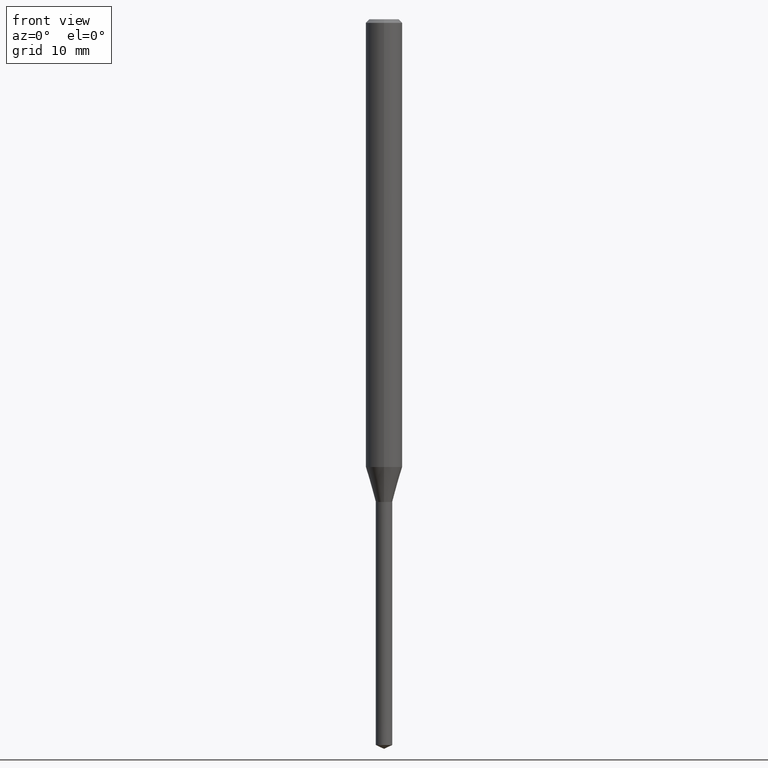
[diagram: clean part render]
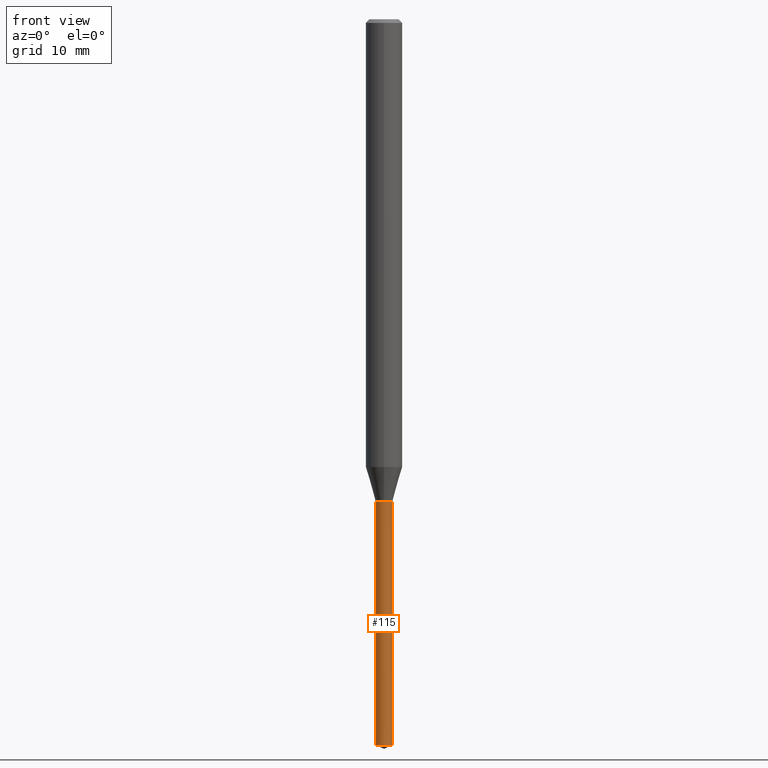
[diagram: same view with one face highlighted and labeled with its STEP entity id]
A machine part, front view. The second image highlights one B-rep face of the part: STEP entity #115.
In plain terms, the highlighted conical surface has half-angle 0.003 deg.
Its self-contained STEP definition (entity closure, byte-faithful):
#93=VERTEX_POINT('',#228);
#97=EDGE_CURVE('',#93,#183,#232,.T.);
#115=ADVANCED_FACE('',(#252),#253,.T.);
#147=EDGE_CURVE('',#159,#177,#291,.T.);
#149=EDGE_CURVE('',#183,#159,#293,.T.);
#159=VERTEX_POINT('',#304);
#161=EDGE_CURVE('',#93,#177,#306,.T.);
#177=VERTEX_POINT('',#323);
#183=VERTEX_POINT('',#329);
#228=CARTESIAN_POINT('',(0.675,8.26609288830105E-017,-59.68524233));
#232=LINE('',#377,#378);
#252=FACE_OUTER_BOUND('',#401,.T.);
#253=CONICAL_SURFACE('',#402,0.6755,5.00369213769467E-005);
#291=LINE('',#449,#450);
#293=CIRCLE('',#453,0.676);
#304=CARTESIAN_POINT('',(-0.676,0.0,-39.7));
#306=CIRCLE('',#469,0.675);
#323=CARTESIAN_POINT('',(-0.675,0.0,-59.68524233));
#329=CARTESIAN_POINT('',(0.676,8.27833895183927E-017,-39.7));
#377=CARTESIAN_POINT('',(0.6755,8.27221592007016E-017,-49.692621165));
#378=VECTOR('',#541,1.0);
#401=EDGE_LOOP('',(#565,#566,#567,#568));
#402=AXIS2_PLACEMENT_3D('',#569,#570,#571);
#449=CARTESIAN_POINT('',(-0.6755,-8.27221592007016E-017,-49.692621165));
#450=VECTOR('',#629,1.0);
#453=AXIS2_PLACEMENT_3D('',#630,#631,#632);
#469=AXIS2_PLACEMENT_3D('',#647,#648,#649);
#541=DIRECTION('',(5.00369213560671E-005,6.12755318183504E-021,0.999999998748153));
#565=ORIENTED_EDGE('',*,*,#147,.T.);
#566=ORIENTED_EDGE('',*,*,#161,.F.);
#567=ORIENTED_EDGE('',*,*,#97,.T.);
#568=ORIENTED_EDGE('',*,*,#149,.T.);
#569=CARTESIAN_POINT('',(0.0,0.0,-49.692621165));
#570=DIRECTION('',(-0.0,-0.0,1.0));
#571=DIRECTION('',(-1.0,0.0,0.0));
#629=DIRECTION('',(5.00369213560671E-005,6.12755318183504E-021,-0.999999998748153));
#630=CARTESIAN_POINT('',(0.0,0.0,-39.7));
#631=DIRECTION('',(0.0,0.0,-1.0));
#632=DIRECTION('',(-1.0,0.0,0.0));
#647=CARTESIAN_POINT('',(0.0,0.0,-59.68524233));
#648=DIRECTION('',(0.0,0.0,-1.0));
#649=DIRECTION('',(-1.0,0.0,0.0));